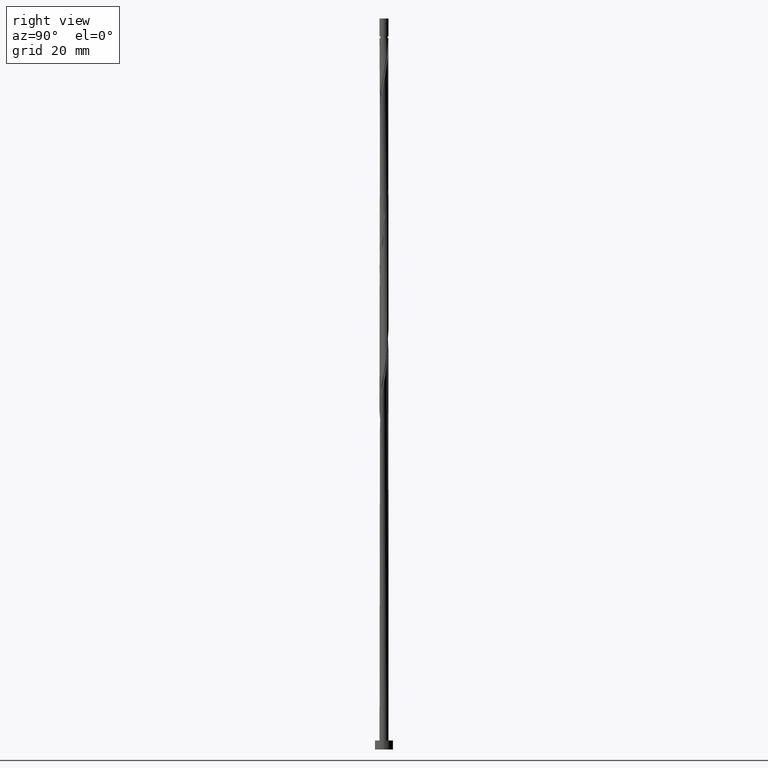
[diagram: clean part render]
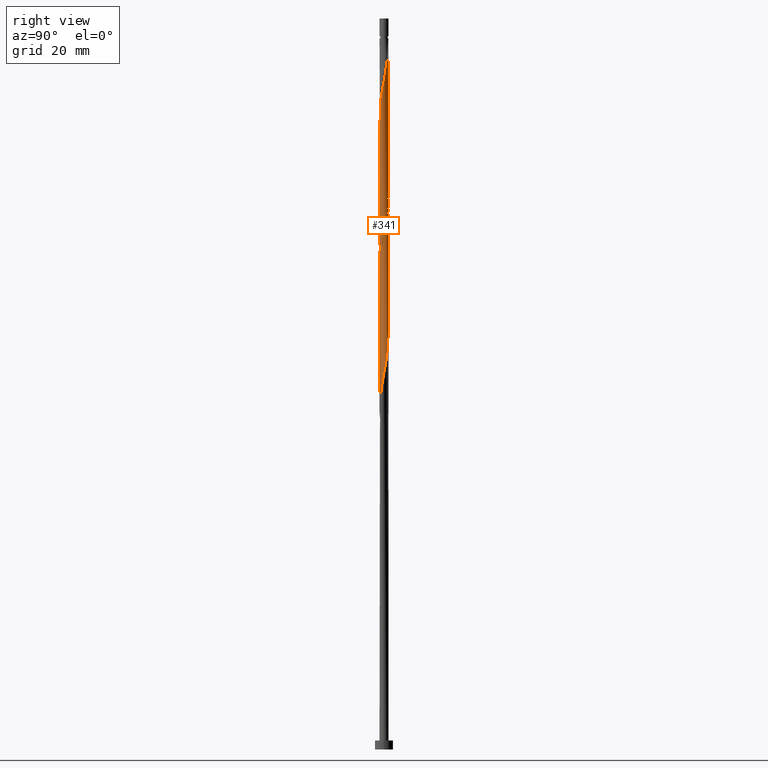
[diagram: same view with one face highlighted and labeled with its STEP entity id]
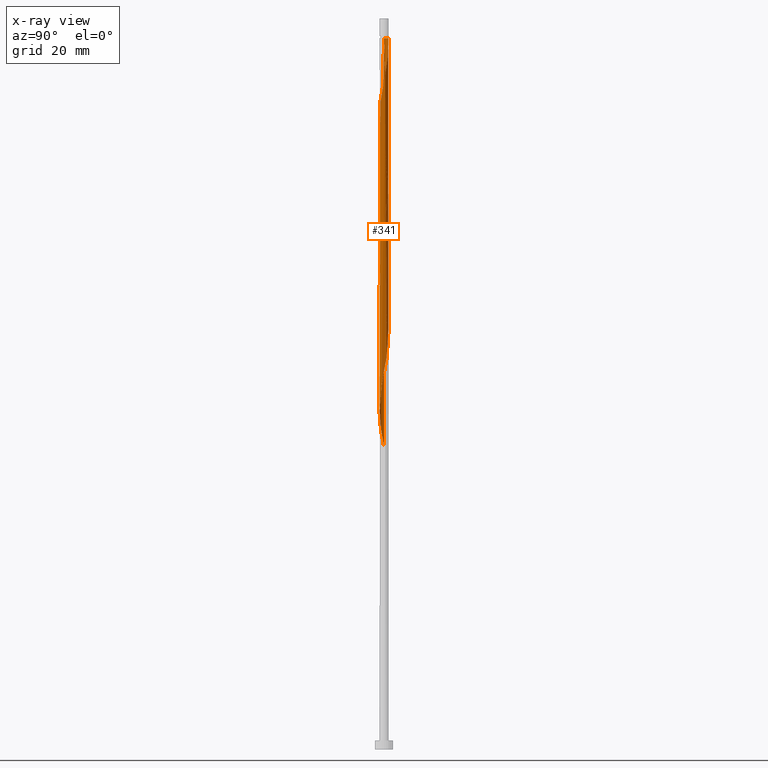
[diagram: x-ray of the same camera — body ghosted, the highlighted face saturated]
A machine part, right view. The second image highlights one B-rep face of the part: STEP entity #341.
The next image is the same camera in x-ray: the body ghosted, the highlighted face saturated — about 0% of this face is hidden behind the body in this view.
In plain terms, the highlighted cylindrical surface (bore or boss wall) has radius 1 mm, axis along (-0, -0, -1).
Its self-contained STEP definition (entity closure, byte-faithful):
#9 = CARTESIAN_POINT ( 'NONE',  ( 0.7609717405145353109, -0.6620078475813414576, 144.4437106642635911 ) ) ;
#18 = CARTESIAN_POINT ( 'NONE',  ( 0.4424964979548797195, 0.9063824962005108121, 154.1659328864858196 ) ) ;
#25 = LINE ( 'NONE', #64, #267 ) ;
#34 = CARTESIAN_POINT ( 'NONE',  ( -1.000000000000001110, 3.962752877559323253E-16, 131.5745884534979382 ) ) ;
#39 = VERTEX_POINT ( 'NONE', #973 ) ;
#40 = CARTESIAN_POINT ( 'NONE',  ( -0.1928297432528304767, 0.9900247826383182792, 93.05482177537464850 ) ) ;
#50 = CARTESIAN_POINT ( 'NONE',  ( -0.9981116494354765889, -0.06142585173357452411, 67.36037733093023405 ) ) ;
#60 = CARTESIAN_POINT ( 'NONE',  ( -0.5637020182777556787, -0.8364044564148299665, 105.5548217753746769 ) ) ;
#61 = ORIENTED_EDGE ( 'NONE', *, *, #166, .F. ) ;
#64 = CARTESIAN_POINT ( 'NONE',  ( -1.000000000000000000, 0.000000000000000000, 162.0000000000000000 ) ) ;
#69 = CARTESIAN_POINT ( 'NONE',  ( 0.5637020182777560118, 0.8364044564148296335, 88.88815510870799130 ) ) ;
#70 = CARTESIAN_POINT ( 'NONE',  ( 0.06142585173357423267, -0.9981116494354765889, 109.0270439975969055 ) ) ;
#75 = CARTESIAN_POINT ( 'NONE',  ( -0.1989974874213292777, -0.9800000000000004263, 74.30482177537467692 ) ) ;
#91 = ORIENTED_EDGE ( 'NONE', *, *, #598, .F. ) ;
#125 = DIRECTION ( 'NONE',  ( -0.000000000000000000, -0.000000000000000000, -1.000000000000000000 ) ) ;
#129 = CARTESIAN_POINT ( 'NONE',  ( -0.6620078475813414576, -0.7609717405145353109, 136.1103773309302198 ) ) ;
#135 = AXIS2_PLACEMENT_3D ( 'NONE', #546, #159, #535 ) ;
#137 = CARTESIAN_POINT ( 'NONE',  ( 0.9538014837673660651, 0.3280169350569768771, 149.9992662198191340 ) ) ;
#145 = CARTESIAN_POINT ( 'NONE',  ( -0.1989974874213560341, 0.9800000000002700995, 157.6381551087080481 ) ) ;
#159 = DIRECTION ( 'NONE',  ( -0.000000000000000000, -0.000000000000000000, -1.000000000000000000 ) ) ;
#166 = EDGE_CURVE ( 'NONE', #1063, #756, #553, .T. ) ;
#168 = CARTESIAN_POINT ( 'NONE',  ( 0.9800000000000004263, -0.1989974874213293332, 82.63815510870803394 ) ) ;
#177 = CARTESIAN_POINT ( 'NONE',  ( 0.9900247826383182792, 0.1928297432528297550, 84.72148844204134832 ) ) ;
#182 = CARTESIAN_POINT ( 'NONE',  ( 0.8951029700910978493, -0.4458594766673669718, 114.5825995531524626 ) ) ;
#188 = CARTESIAN_POINT ( 'NONE',  ( 0.3280169350569780984, 0.9538014837673657320, 90.27704399759689124 ) ) ;
#195 = CARTESIAN_POINT ( 'NONE',  ( -0.8336771183575234501, -0.5522521727681105608, 103.4714884420413341 ) ) ;
#200 = CARTESIAN_POINT ( 'NONE',  ( -0.3176631206038548760, 0.9482036394194148787, 127.0825995531524626 ) ) ;
#203 = VECTOR ( 'NONE', #955, 1000.000000000000000 ) ;
#252 = CARTESIAN_POINT ( 'NONE',  ( -0.7492061519980853790, -0.6623368793961452727, 135.4159328864857343 ) ) ;
#259 = CARTESIAN_POINT ( 'NONE',  ( -0.8364044564148300775, -0.5637020182777552346, 134.7214884420413341 ) ) ;
#267 = VECTOR ( 'NONE', #313, 1000.000000000000000 ) ;
#273 = CARTESIAN_POINT ( 'NONE',  ( 0.9900247826383182792, 0.1928297432528297550, 118.0548217753746769 ) ) ;
#289 = CARTESIAN_POINT ( 'NONE',  ( 0.7492061519980853790, -0.6623368793961458278, 79.86037733093023405 ) ) ;
#292 = CARTESIAN_POINT ( 'NONE',  ( 0.6623368793961458278, 0.7492061519980852680, 121.5270439975968912 ) ) ;
#302 = CARTESIAN_POINT ( 'NONE',  ( 0.3176631206038545985, -0.9482036394194149898, 77.08259955315247680 ) ) ;
#306 = CARTESIAN_POINT ( 'NONE',  ( 1.000000000000000888, -0.1005037815259269829, 116.5016287280621299 ) ) ;
#311 = CARTESIAN_POINT ( 'NONE',  ( -0.8364044564148299665, 0.5637020182777556787, 97.22148844204136253 ) ) ;
#313 = DIRECTION ( 'NONE',  ( -0.000000000000000000, -0.000000000000000000, -1.000000000000000000 ) ) ;
#319 = CARTESIAN_POINT ( 'NONE',  ( 0.4424964979548790533, -0.9063824962005115893, 77.77704399759689124 ) ) ;
#324 = CARTESIAN_POINT ( 'NONE',  ( -0.9900247826383182792, -0.1928297432528301714, 68.05482177537467692 ) ) ;
#331 = LINE ( 'NONE', #1072, #203 ) ;
#341 = ADVANCED_FACE ( 'NONE', ( #1245 ), #629, .T. ) ;
#363 = EDGE_CURVE ( 'NONE', #1548, #1425, #974, .T. ) ;
#374 = CARTESIAN_POINT ( 'NONE',  ( 0.8951029700910977382, 0.4458594766673656951, 150.6937106642635626 ) ) ;
#382 = CARTESIAN_POINT ( 'NONE',  ( -0.9538014837673660651, -0.3280169350569769326, 133.3325995531524768 ) ) ;
#391 = CARTESIAN_POINT ( 'NONE',  ( 0.3280169350569769326, -0.9538014837673660651, 141.6659328864858196 ) ) ;
#395 = CARTESIAN_POINT ( 'NONE',  ( 0.8336771183575236721, 0.5522521727681103387, 120.1381551087080197 ) ) ;
#401 = CARTESIAN_POINT ( 'NONE',  ( 0.5637020182777549016, -0.8364044564148300775, 143.0548217753747053 ) ) ;
#411 = CARTESIAN_POINT ( 'NONE',  ( 0.7492061519980853790, -0.6623368793961458278, 113.1937106642635626 ) ) ;
#415 = CARTESIAN_POINT ( 'NONE',  ( 0.9981116494354765889, 0.06142585173357419104, 84.02704399759690546 ) ) ;
#420 = CARTESIAN_POINT ( 'NONE',  ( 1.000000000000001332, -5.046902249721836617E-16, 117.0350550972514156 ) ) ;
#426 = CARTESIAN_POINT ( 'NONE',  ( -1.000000000000001332, 2.654296738742595609E-16, 67.03505509725142986 ) ) ;
#434 = EDGE_CURVE ( 'NONE', #1548, #993, #331, .T. ) ;
#436 = CARTESIAN_POINT ( 'NONE',  ( -0.9800000000000004263, 0.1989974874213291667, 99.30482177537470534 ) ) ;
#442 = CARTESIAN_POINT ( 'NONE',  ( -0.4424964979548792199, 0.9063824962005113672, 94.44371066426356265 ) ) ;
#447 = CARTESIAN_POINT ( 'NONE',  ( 0.8364044564148296335, -0.5637020182777560118, 80.55482177537467692 ) ) ;
#456 = CARTESIAN_POINT ( 'NONE',  ( -0.9800000000000004263, 0.1989974874213291667, 132.6381551087080197 ) ) ;
#495 = CARTESIAN_POINT ( 'NONE',  ( -0.4424964979548796640, -0.9063824962005109231, 137.4992662198191056 ) ) ;
#501 = ORIENTED_EDGE ( 'NONE', *, *, #363, .F. ) ;
#504 = CARTESIAN_POINT ( 'NONE',  ( 0.9981116494354761448, -0.06142585173357540534, 147.9159328864857343 ) ) ;
#519 = CARTESIAN_POINT ( 'NONE',  ( 0.8364044564148296335, -0.5637020182777560118, 113.8881551087079771 ) ) ;
#524 = CARTESIAN_POINT ( 'NONE',  ( 1.000000000000001332, -5.046902249721836617E-16, 117.0350550972514156 ) ) ;
#528 = CARTESIAN_POINT ( 'NONE',  ( 0.9800000000000004263, -0.1989974874213293332, 115.9714884420413767 ) ) ;
#532 = CARTESIAN_POINT ( 'NONE',  ( -0.8951029700910979603, 0.4458594766673665277, 97.91593288648579119 ) ) ;
#535 = DIRECTION ( 'NONE',  ( -1.000000000000000000, 0.000000000000000000, 0.000000000000000000 ) ) ;
#539 = CARTESIAN_POINT ( 'NONE',  ( -0.1989974874213560341, 0.9800000000002700995, 157.6381551087080481 ) ) ;
#544 = CARTESIAN_POINT ( 'NONE',  ( 0.6623368793961458278, 0.7492061519980852680, 88.19371066426356265 ) ) ;
#546 = CARTESIAN_POINT ( 'NONE',  ( 0.000000000000000000, 0.000000000000000000, 157.6381551087080197 ) ) ;
#553 = LINE ( 'NONE', #674, #1000 ) ;
#556 = CARTESIAN_POINT ( 'NONE',  ( -0.9063824962005115893, -0.4424964979548790533, 102.7770439975969055 ) ) ;
#566 = CARTESIAN_POINT ( 'NONE',  ( -0.9900247826383182792, -0.1928297432528301714, 101.3881551087080055 ) ) ;
#570 = CARTESIAN_POINT ( 'NONE',  ( 0.5522521727681100057, -0.8336771183575238942, 111.8048217753746911 ) ) ;
#574 = CARTESIAN_POINT ( 'NONE',  ( -0.7609717405145357549, -0.6620078475813411245, 104.1659328864857628 ) ) ;
#590 = ORIENTED_EDGE ( 'NONE', *, *, #434, .T. ) ;
#598 = EDGE_CURVE ( 'NONE', #39, #756, #770, .T. ) ;
#600 = CARTESIAN_POINT ( 'NONE',  ( -0.8364044564148299665, 0.5637020182777556787, 130.5548217753746769 ) ) ;
#618 = CARTESIAN_POINT ( 'NONE',  ( 1.006198516232634566, 0.06997803978568023497, 148.6103773309302198 ) ) ;
#625 = CARTESIAN_POINT ( 'NONE',  ( -0.06142585173357485023, -0.9981116494354761448, 139.5825995531524484 ) ) ;
#629 = CYLINDRICAL_SURFACE ( 'NONE', #1182, 1.000000000000000000 ) ;
#630 = VERTEX_POINT ( 'NONE', #1538 ) ;
#634 = CARTESIAN_POINT ( 'NONE',  ( 0.5522521727681103387, 0.8336771183575228950, 153.4714884420413057 ) ) ;
#650 = CARTESIAN_POINT ( 'NONE',  ( 0.8364044564148301886, 0.5637020182777549016, 151.3881551087079913 ) ) ;
#655 = CARTESIAN_POINT ( 'NONE',  ( -0.9063824962005115893, -0.4424964979548790533, 69.44371066426354844 ) ) ;
#666 = CARTESIAN_POINT ( 'NONE',  ( 1.006198516232634788, -0.06997803978568149785, 83.33259955315246259 ) ) ;
#674 = CARTESIAN_POINT ( 'NONE',  ( 1.000000000000000000, 1.224646799147353207E-16, 162.0000000000000000 ) ) ;
#677 = CARTESIAN_POINT ( 'NONE',  ( -0.4458594766673665277, -0.8951029700910979603, 72.91593288648576277 ) ) ;
#680 = CARTESIAN_POINT ( 'NONE',  ( 0.3280169350569780984, 0.9538014837673657320, 123.6103773309302483 ) ) ;
#687 = CARTESIAN_POINT ( 'NONE',  ( -0.6623368793961457168, -0.7492061519980853790, 104.8603773309302483 ) ) ;
#689 = CARTESIAN_POINT ( 'NONE',  ( 0.3176631206038545985, -0.9482036394194149898, 110.4159328864857770 ) ) ;
#693 = CARTESIAN_POINT ( 'NONE',  ( -1.006198516232634788, 0.06997803978568140071, 99.99926621981910557 ) ) ;
#698 = CARTESIAN_POINT ( 'NONE',  ( -0.1928297432528304767, 0.9900247826383182792, 126.3881551087080197 ) ) ;
#702 = CARTESIAN_POINT ( 'NONE',  ( -1.000000000000001554, -7.476892221810127225E-17, 133.7017217639181013 ) ) ;
#710 = CARTESIAN_POINT ( 'NONE',  ( -0.9538014837673659541, 0.3280169350569773212, 131.9437106642635911 ) ) ;
#750 = CARTESIAN_POINT ( 'NONE',  ( -1.000000000000001776, -0.1005037815259220702, 132.1080148226871813 ) ) ;
#756 = VERTEX_POINT ( 'NONE', #958 ) ;
#759 = CARTESIAN_POINT ( 'NONE',  ( 0.9063824962005108121, -0.4424964979548796085, 145.8325995531525052 ) ) ;
#767 = CARTESIAN_POINT ( 'NONE',  ( -0.5522521727681102277, -0.8336771183575231170, 136.8048217753746485 ) ) ;
#770 =( BOUNDED_CURVE ( )  B_SPLINE_CURVE ( 2, ( #702, #845, #456, #710, #1082, #600, #1200, #1219, #1322, #1184, #200, #698, #1278, #1049, #1039, #680, #1449, #1529, #292, #1558, #395, #888, #1406, #273, #792, #1289, #524 ),
 .UNSPECIFIED., .F., .T. ) 
 B_SPLINE_CURVE_WITH_KNOTS ( ( 3, 2, 2, 2, 2, 2, 2, 2, 2, 2, 2, 2, 2, 3 ),
 ( 0.4295317669814460726, 0.4375000000000000000, 0.4479166666666666852, 0.4583333333333333148, 0.4687500000000000000, 0.4791666666666666852, 0.4895833333333333148, 0.5000000000000000000, 0.5104166666666666297, 0.5208333333333333703, 0.5312500000000000000, 0.5416666666666666297, 0.5520833333333333703, 0.5545317669814463502 ),
 .UNSPECIFIED. ) 
 CURVE ( )  GEOMETRIC_REPRESENTATION_ITEM ( )  RATIONAL_B_SPLINE_CURVE ( ( 0.9062941362546342861, 0.9031415850403382573, 0.9090909090909136125, 0.9013135103398322023, 0.9090909090909136125, 0.9013135103398322023, 0.9090909090909136125, 0.9013135103398322023, 0.9090909090909136125, 0.9013135103398322023, 0.9090909090909136125, 0.9013135103398322023, 0.9090909090909136125, 0.9013135103398322023, 0.9090909090909136125, 0.9013135103398322023, 0.9090909090909136125, 0.9013135103398322023, 0.9090909090909136125, 0.9013135103398322023, 0.9090909090909136125, 0.9013135103398322023, 0.9090909090909136125, 0.9013135103398322023, 0.9090909090909136125, 0.9072628343904073356, 0.9062941362546339530 ) ) 
 REPRESENTATION_ITEM ( '' )  );
#778 = CARTESIAN_POINT ( 'NONE',  ( -0.3176631206038550426, -0.9482036394194143236, 138.1937106642634774 ) ) ;
#784 = CARTESIAN_POINT ( 'NONE',  ( 0.6620078475813411245, -0.7609717405145357549, 112.4992662198191198 ) ) ;
#788 = CARTESIAN_POINT ( 'NONE',  ( -0.6623368793961457168, -0.7492061519980853790, 71.52704399759690546 ) ) ;
#789 = ORIENTED_EDGE ( 'NONE', *, *, #166, .T. ) ;
#792 = CARTESIAN_POINT ( 'NONE',  ( 0.9981116494354765889, 0.06142585173357419104, 117.3603773309302341 ) ) ;
#808 = CARTESIAN_POINT ( 'NONE',  ( -0.7492061519980854900, 0.6623368793961456058, 96.52704399759693388 ) ) ;
#815 = CARTESIAN_POINT ( 'NONE',  ( 0.8951029700910978493, -0.4458594766673669718, 81.24926621981911978 ) ) ;
#820 = CARTESIAN_POINT ( 'NONE',  ( -0.5637020182777556787, -0.8364044564148299665, 72.22148844204134832 ) ) ;
#845 = CARTESIAN_POINT ( 'NONE',  ( -1.000000000000001554, 0.1005037815259239437, 133.1682953947288013 ) ) ;
#873 = CARTESIAN_POINT ( 'NONE',  ( -0.9799999999999999822, -0.1989974874213290001, 132.6381551087079629 ) ) ;
#883 = CARTESIAN_POINT ( 'NONE',  ( 0.6620078475813419017, 0.7609717405145348668, 152.7770439975969055 ) ) ;
#888 = CARTESIAN_POINT ( 'NONE',  ( 0.9063824962005118113, 0.4424964979548786093, 119.4437106642635626 ) ) ;
#893 = CARTESIAN_POINT ( 'NONE',  ( 0.8336771183575227839, -0.5522521727681107828, 145.1381551087079629 ) ) ;
#897 = ORIENTED_EDGE ( 'NONE', *, *, #1507, .F. ) ;
#906 = CARTESIAN_POINT ( 'NONE',  ( 0.9063824962005118113, 0.4424964979548786093, 86.11037733093023405 ) ) ;
#918 = CARTESIAN_POINT ( 'NONE',  ( -0.5522521727681105608, 0.8336771183575236721, 95.13815510870801972 ) ) ;
#929 = CARTESIAN_POINT ( 'NONE',  ( -0.9538014837673659541, 0.3280169350569773212, 98.61037733093021984 ) ) ;
#937 = CARTESIAN_POINT ( 'NONE',  ( -0.3176631206038548760, 0.9482036394194148787, 93.74926621981911978 ) ) ;
#944 = CARTESIAN_POINT ( 'NONE',  ( 0.6620078475813411245, -0.7609717405145357549, 79.16593288648580540 ) ) ;
#955 = DIRECTION ( 'NONE',  ( -0.000000000000000000, -0.000000000000000000, -1.000000000000000000 ) ) ;
#958 = CARTESIAN_POINT ( 'NONE',  ( 1.000000000000001332, -5.046902249721836617E-16, 117.0350550972514156 ) ) ;
#973 = CARTESIAN_POINT ( 'NONE',  ( -1.000000000000001554, -7.476892221810127225E-17, 133.7017217639181013 ) ) ;
#974 =( BOUNDED_CURVE ( )  B_SPLINE_CURVE ( 2, ( #34, #750, #873, #382, #1250, #259, #252, #129, #767, #495, #778, #1240, #625, #1117, #1143, #391, #1270, #401, #1509, #9, #893, #759, #1412, #996, #504, #618, #1515, #137, #374, #650, #1005, #883, #634, #18, #1260, #1013, #1524, #1401, #145 ),
 .UNSPECIFIED., .F., .T. ) 
 B_SPLINE_CURVE_WITH_KNOTS ( ( 3, 2, 2, 2, 2, 2, 2, 2, 2, 2, 2, 2, 2, 2, 2, 2, 2, 2, 2, 3 ),
 ( 0.5545317669814459061, 0.5625000000000000000, 0.5729166666666667407, 0.5833333333333332593, 0.5937500000000000000, 0.6041666666666667407, 0.6145833333333332593, 0.6250000000000000000, 0.6354166666666667407, 0.6458333333333332593, 0.6562499999999998890, 0.6666666666666666297, 0.6770833333333332593, 0.6874999999999998890, 0.6979166666666666297, 0.7083333333333331483, 0.7187499999999998890, 0.7291666666666666297, 0.7395833333333331483, 0.7499999999999998890 ),
 .UNSPECIFIED. ) 
 CURVE ( )  GEOMETRIC_REPRESENTATION_ITEM ( )  RATIONAL_B_SPLINE_CURVE ( ( 0.9062941362546443891, 0.9031415850403481382, 0.9090909090909238266, 0.9013135103398420833, 0.9090909090909238266, 0.9013135103398420833, 0.9090909090909238266, 0.9013135103398420833, 0.9090909090909238266, 0.9013135103398420833, 0.9090909090909238266, 0.9013135103398420833, 0.9090909090909238266, 0.9013135103398420833, 0.9090909090909238266, 0.9013135103398420833, 0.9090909090909238266, 0.9013135103398420833, 0.9090909090909238266, 0.9013135103398420833, 0.9090909090909238266, 0.9013135103398420833, 0.9090909090909238266, 0.9013135103398420833, 0.9090909090909238266, 0.9013135103398420833, 0.9090909090909238266, 0.9013135103398420833, 0.9090909090909238266, 0.9013135103398420833, 0.9090909090909238266, 0.9013135103398420833, 0.9090909090909238266, 0.9013135103398420833, 0.9090909090909238266, 0.9013135103398420833, 0.9090909090909238266, 0.9013135103398420833, 0.9090909090909238266 ) ) 
 REPRESENTATION_ITEM ( '' )  );
#993 = VERTEX_POINT ( 'NONE', #1345 ) ;
#996 = CARTESIAN_POINT ( 'NONE',  ( 0.9900247826383182792, -0.1928297432528310040, 147.2214884420413341 ) ) ;
#1000 = VECTOR ( 'NONE', #1165, 1000.000000000000000 ) ;
#1005 = CARTESIAN_POINT ( 'NONE',  ( 0.7492061519980858231, 0.6623368793961449397, 152.0825995531523915 ) ) ;
#1013 = CARTESIAN_POINT ( 'NONE',  ( 0.1928297432528310595, 0.9900247826383182792, 155.5548217753747053 ) ) ;
#1026 = CARTESIAN_POINT ( 'NONE',  ( -0.06142585173357461431, 0.9981116494354765889, 92.36037733093023405 ) ) ;
#1036 = CARTESIAN_POINT ( 'NONE',  ( 0.7609717405145358660, 0.6620078475813411245, 87.49926621981911978 ) ) ;
#1039 = CARTESIAN_POINT ( 'NONE',  ( 0.1989974874213293610, 0.9800000000000004263, 124.3048217753746769 ) ) ;
#1047 = CARTESIAN_POINT ( 'NONE',  ( -0.6620078475813414576, 0.7609717405145354219, 95.83259955315244838 ) ) ;
#1049 = CARTESIAN_POINT ( 'NONE',  ( 0.06997803978568116479, 1.006198516232634566, 124.9992662198191340 ) ) ;
#1061 = CARTESIAN_POINT ( 'NONE',  ( 0.9538014837673658430, -0.3280169350569780429, 81.94371066426354844 ) ) ;
#1063 = VERTEX_POINT ( 'NONE', #1391 ) ;
#1065 = CARTESIAN_POINT ( 'NONE',  ( -0.06997803978568145622, -1.006198516232634788, 108.3325995531524484 ) ) ;
#1068 = CARTESIAN_POINT ( 'NONE',  ( -0.3280169350569775433, -0.9538014837673659541, 73.61037733093021984 ) ) ;
#1072 = CARTESIAN_POINT ( 'NONE',  ( -1.000000000000000000, 0.000000000000000000, 162.0000000000000000 ) ) ;
#1082 = CARTESIAN_POINT ( 'NONE',  ( -0.8951029700910979603, 0.4458594766673665277, 131.2492662198191624 ) ) ;
#1117 = CARTESIAN_POINT ( 'NONE',  ( 0.06997803978568077621, -1.006198516232634566, 140.2770439975969055 ) ) ;
#1122 = ORIENTED_EDGE ( 'NONE', *, *, #1147, .T. ) ;
#1143 = CARTESIAN_POINT ( 'NONE',  ( 0.1989974874213289169, -0.9799999999999999822, 140.9714884420413341 ) ) ;
#1147 = EDGE_CURVE ( 'NONE', #630, #1425, #1196, .T. ) ;
#1150 = CARTESIAN_POINT ( 'NONE',  ( -0.3280169350569775433, -0.9538014837673659541, 106.9437106642635626 ) ) ;
#1159 = CARTESIAN_POINT ( 'NONE',  ( -0.7609717405145357549, -0.6620078475813411245, 70.83259955315247680 ) ) ;
#1165 = DIRECTION ( 'NONE',  ( -0.000000000000000000, -0.000000000000000000, -1.000000000000000000 ) ) ;
#1176 = CARTESIAN_POINT ( 'NONE',  ( -0.1989974874213292777, -0.9800000000000004263, 107.6381551087080339 ) ) ;
#1177 = CARTESIAN_POINT ( 'NONE',  ( 0.1928297432528298661, -0.9900247826383182792, 109.7214884420413341 ) ) ;
#1180 = CARTESIAN_POINT ( 'NONE',  ( 0.4458594766673670828, 0.8951029700910976272, 89.58259955315244838 ) ) ;
#1182 = AXIS2_PLACEMENT_3D ( 'NONE', #1237, #125, #1607 ) ;
#1184 = CARTESIAN_POINT ( 'NONE',  ( -0.4424964979548792199, 0.9063824962005113672, 127.7770439975969055 ) ) ;
#1196 = CIRCLE ( 'NONE', #135, 0.9999999999999926725 ) ;
#1198 = ORIENTED_EDGE ( 'NONE', *, *, #1599, .F. ) ;
#1200 = CARTESIAN_POINT ( 'NONE',  ( -0.7492061519980854900, 0.6623368793961456058, 129.8603773309302198 ) ) ;
#1219 = CARTESIAN_POINT ( 'NONE',  ( -0.6620078475813414576, 0.7609717405145354219, 129.1659328864857628 ) ) ;
#1237 = CARTESIAN_POINT ( 'NONE',  ( 0.000000000000000000, 0.000000000000000000, 162.0000000000000000 ) ) ;
#1240 = CARTESIAN_POINT ( 'NONE',  ( -0.1928297432528305599, -0.9900247826383185012, 138.8881551087079629 ) ) ;
#1245 = FACE_OUTER_BOUND ( 'NONE', #1389, .T. ) ;
#1250 = CARTESIAN_POINT ( 'NONE',  ( -0.8951029700910976272, -0.4458594766673660281, 134.0270439975968486 ) ) ;
#1260 = CARTESIAN_POINT ( 'NONE',  ( 0.3176631206038552091, 0.9482036394194142126, 154.8603773309301630 ) ) ;
#1270 = CARTESIAN_POINT ( 'NONE',  ( 0.4458594766673658061, -0.8951029700910977382, 142.3603773309302198 ) ) ;
#1278 = CARTESIAN_POINT ( 'NONE',  ( -0.06142585173357461431, 0.9981116494354765889, 125.6937106642636195 ) ) ;
#1286 = CARTESIAN_POINT ( 'NONE',  ( 0.06997803978568116479, 1.006198516232634566, 91.66593288648580540 ) ) ;
#1289 = CARTESIAN_POINT ( 'NONE',  ( 1.000000000000001776, 0.03074195165766773277, 117.1982187852795647 ) ) ;
#1309 = CARTESIAN_POINT ( 'NONE',  ( -0.4458594766673665277, -0.8951029700910979603, 106.2492662198191198 ) ) ;
#1311 = CARTESIAN_POINT ( 'NONE',  ( 0.9538014837673658430, -0.3280169350569780429, 115.2770439975968912 ) ) ;
#1317 = CARTESIAN_POINT ( 'NONE',  ( -0.06997803978568145622, -1.006198516232634788, 74.99926621981910557 ) ) ;
#1322 = CARTESIAN_POINT ( 'NONE',  ( -0.5522521727681105608, 0.8336771183575236721, 128.4714884420413341 ) ) ;
#1324 = CARTESIAN_POINT ( 'NONE',  ( 0.8336771183575236721, 0.5522521727681103387, 86.80482177537467692 ) ) ;
#1345 = CARTESIAN_POINT ( 'NONE',  ( -1.000000000000001332, 2.654296738742595609E-16, 67.03505509725142986 ) ) ;
#1389 = EDGE_LOOP ( 'NONE', ( #897, #1122, #501, #590, #1198, #61, #789, #91 ) ) ;
#1391 = CARTESIAN_POINT ( 'NONE',  ( 1.000000000000000000, 1.224646799147353207E-16, 157.6381551087080481 ) ) ;
#1401 = CARTESIAN_POINT ( 'NONE',  ( -0.06997803978567870842, 1.006198516232634566, 156.9437106642635911 ) ) ;
#1406 = CARTESIAN_POINT ( 'NONE',  ( 0.9482036394194151008, 0.3176631206038541544, 118.7492662198191482 ) ) ;
#1412 = CARTESIAN_POINT ( 'NONE',  ( 0.9482036394194143236, -0.3176631206038551536, 146.5270439975968486 ) ) ;
#1424 = CARTESIAN_POINT ( 'NONE',  ( 0.9482036394194151008, 0.3176631206038541544, 85.41593288648579119 ) ) ;
#1425 = VERTEX_POINT ( 'NONE', #539 ) ;
#1436 = CARTESIAN_POINT ( 'NONE',  ( 0.1989974874213293610, 0.9800000000000004263, 90.97148844204136253 ) ) ;
#1446 = CARTESIAN_POINT ( 'NONE',  ( -0.9482036394194148787, -0.3176631206038547650, 102.0825995531524626 ) ) ;
#1449 = CARTESIAN_POINT ( 'NONE',  ( 0.4458594766673670828, 0.8951029700910976272, 122.9159328864857628 ) ) ;
#1455 = CARTESIAN_POINT ( 'NONE',  ( 0.5522521727681100057, -0.8336771183575238942, 78.47148844204133411 ) ) ;
#1460 = CARTESIAN_POINT ( 'NONE',  ( -0.9482036394194148787, -0.3176631206038547650, 68.74926621981913399 ) ) ;
#1507 = EDGE_CURVE ( 'NONE', #630, #39, #25, .T. ) ;
#1509 = CARTESIAN_POINT ( 'NONE',  ( 0.6623368793961451617, -0.7492061519980853790, 143.7492662198190487 ) ) ;
#1515 = CARTESIAN_POINT ( 'NONE',  ( 0.9799999999999999822, 0.1989974874213289169, 149.3048217753746485 ) ) ;
#1524 = CARTESIAN_POINT ( 'NONE',  ( 0.06142585173357546086, 0.9981116494354761448, 156.2492662198191340 ) ) ;
#1529 = CARTESIAN_POINT ( 'NONE',  ( 0.5637020182777560118, 0.8364044564148296335, 122.2214884420413483 ) ) ;
#1538 = CARTESIAN_POINT ( 'NONE',  ( -0.9999999999999926725, 0.000000000000000000, 157.6381551087080197 ) ) ;
#1546 = CARTESIAN_POINT ( 'NONE',  ( 0.06142585173357423267, -0.9981116494354765889, 75.69371066426357686 ) ) ;
#1548 = VERTEX_POINT ( 'NONE', #1560 ) ;
#1556 = CARTESIAN_POINT ( 'NONE',  ( -1.000000000000001554, -0.03074195165766940505, 67.19821878527956471 ) ) ;
#1558 = CARTESIAN_POINT ( 'NONE',  ( 0.7609717405145358660, 0.6620078475813411245, 120.8325995531524057 ) ) ;
#1560 = CARTESIAN_POINT ( 'NONE',  ( -1.000000000000001110, 3.962752877559323253E-16, 131.5745884534979382 ) ) ;
#1565 = CARTESIAN_POINT ( 'NONE',  ( 0.1928297432528298661, -0.9900247826383182792, 76.38815510870801972 ) ) ;
#1572 = CARTESIAN_POINT ( 'NONE',  ( -0.9981116494354765889, -0.06142585173357452411, 100.6937106642635769 ) ) ;
#1577 = CARTESIAN_POINT ( 'NONE',  ( 0.4424964979548790533, -0.9063824962005115893, 111.1103773309302198 ) ) ;
#1581 = CARTESIAN_POINT ( 'NONE',  ( -0.8336771183575234501, -0.5522521727681105608, 70.13815510870799130 ) ) ;
#1599 = EDGE_CURVE ( 'NONE', #756, #993, #1623, .T. ) ;
#1607 = DIRECTION ( 'NONE',  ( -1.000000000000000000, 0.000000000000000000, 0.000000000000000000 ) ) ;
#1623 =( BOUNDED_CURVE ( )  B_SPLINE_CURVE ( 2, ( #420, #306, #528, #1311, #182, #519, #411, #784, #570, #1577, #689, #1177, #70, #1065, #1176, #1150, #1309, #60, #687, #574, #195, #556, #1446, #566, #1572, #693, #436, #929, #532, #311, #808, #1047, #918, #442, #937, #40, #1026, #1286, #1436, #188, #1180, #69, #544, #1036, #1324, #906, #1424, #177, #415, #666, #168, #1061, #815, #447, #289, #944, #1455, #319, #302, #1565, #1546, #1317, #75, #1068, #677, #820, #788, #1159, #1581, #655, #1460, #324, #50, #1556, #426 ),
 .UNSPECIFIED., .F., .T. ) 
 B_SPLINE_CURVE_WITH_KNOTS ( ( 3, 2, 2, 2, 2, 2, 2, 2, 2, 2, 2, 2, 2, 2, 2, 2, 2, 2, 2, 2, 2, 2, 2, 2, 2, 2, 2, 2, 2, 2, 2, 2, 2, 2, 2, 2, 2, 3 ),
 ( 0.5545317669814463502, 0.5625000000000000000, 0.5729166666666666297, 0.5833333333333333703, 0.5937500000000000000, 0.6041666666666666297, 0.6145833333333333703, 0.6250000000000000000, 0.6354166666666666297, 0.6458333333333333703, 0.6562500000000000000, 0.6666666666666666297, 0.6770833333333333703, 0.6875000000000000000, 0.6979166666666666297, 0.7083333333333333703, 0.7187500000000000000, 0.7291666666666666297, 0.7395833333333333703, 0.7500000000000000000, 0.7604166666666666297, 0.7708333333333333703, 0.7812500000000000000, 0.7916666666666666297, 0.8020833333333333703, 0.8125000000000000000, 0.8229166666666666297, 0.8333333333333333703, 0.8437500000000000000, 0.8541666666666666297, 0.8645833333333333703, 0.8750000000000000000, 0.8854166666666666297, 0.8958333333333333703, 0.9062500000000000000, 0.9166666666666667407, 0.9270833333333334814, 0.9295317669814462391 ),
 .UNSPECIFIED. ) 
 CURVE ( )  GEOMETRIC_REPRESENTATION_ITEM ( )  RATIONAL_B_SPLINE_CURVE ( ( 0.9062941362546339530, 0.9031415850403383683, 0.9090909090909136125, 0.9013135103398322023, 0.9090909090909136125, 0.9013135103398322023, 0.9090909090909136125, 0.9013135103398322023, 0.9090909090909136125, 0.9013135103398322023, 0.9090909090909136125, 0.9013135103398322023, 0.9090909090909136125, 0.9013135103398322023, 0.9090909090909136125, 0.9013135103398322023, 0.9090909090909136125, 0.9013135103398322023, 0.9090909090909136125, 0.9013135103398322023, 0.9090909090909136125, 0.9013135103398322023, 0.9090909090909136125, 0.9013135103398322023, 0.9090909090909136125, 0.9013135103398322023, 0.9090909090909136125, 0.9013135103398322023, 0.9090909090909136125, 0.9013135103398322023, 0.9090909090909136125, 0.9013135103398322023, 0.9090909090909136125, 0.9013135103398322023, 0.9090909090909136125, 0.9013135103398322023, 0.9090909090909136125, 0.9013135103398322023, 0.9090909090909136125, 0.9013135103398322023, 0.9090909090909136125, 0.9013135103398322023, 0.9090909090909136125, 0.9013135103398322023, 0.9090909090909136125, 0.9013135103398322023, 0.9090909090909136125, 0.9013135103398322023, 0.9090909090909136125, 0.9013135103398322023, 0.9090909090909136125, 0.9013135103398322023, 0.9090909090909136125, 0.9013135103398322023, 0.9090909090909136125, 0.9013135103398322023, 0.9090909090909136125, 0.9013135103398322023, 0.9090909090909136125, 0.9013135103398322023, 0.9090909090909136125, 0.9013135103398322023, 0.9090909090909136125, 0.9013135103398322023, 0.9090909090909136125, 0.9013135103398322023, 0.9090909090909136125, 0.9013135103398322023, 0.9090909090909136125, 0.9013135103398322023, 0.9090909090909136125, 0.9013135103398322023, 0.9090909090909136125, 0.9072628343904074466, 0.9062941362546340640 ) ) 
 REPRESENTATION_ITEM ( '' )  );